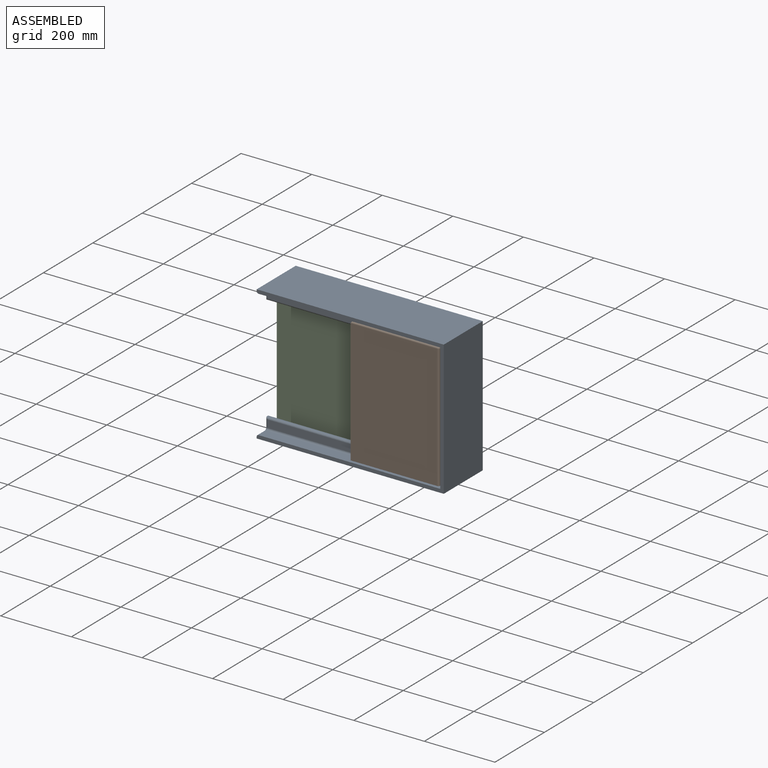
[diagram: assembled view]
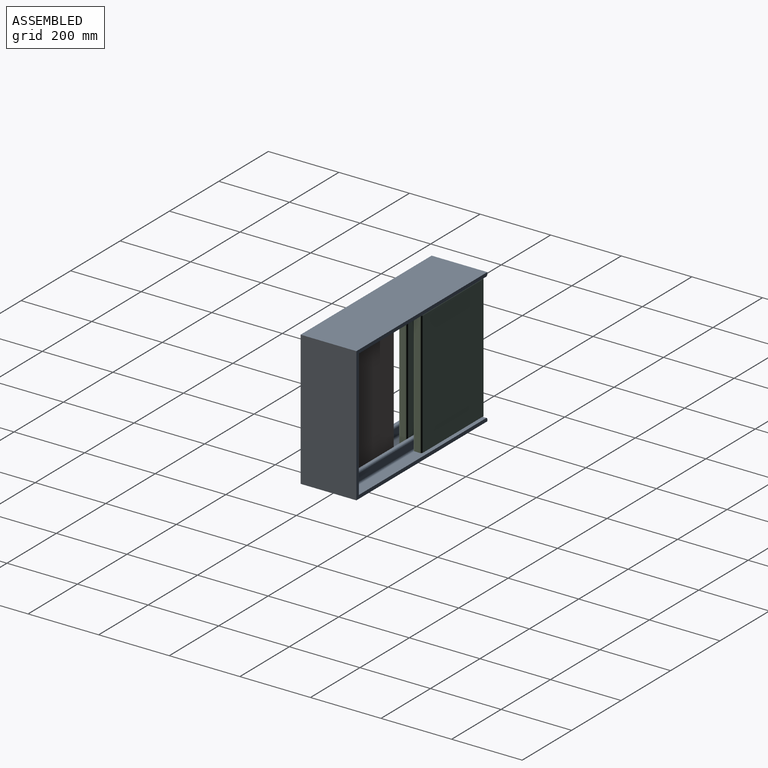
[diagram: assembled view, second angle]
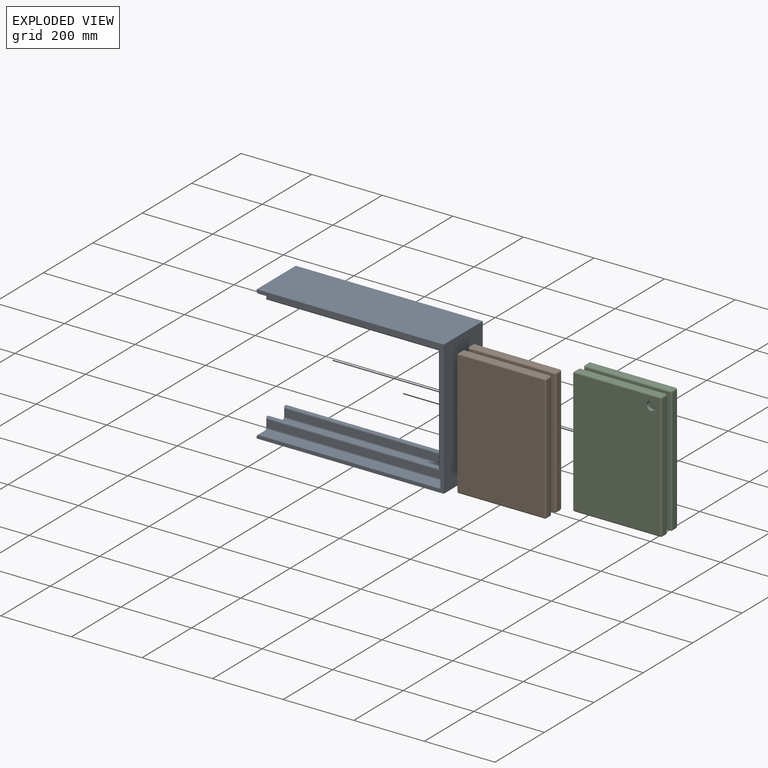
[diagram: exploded view]
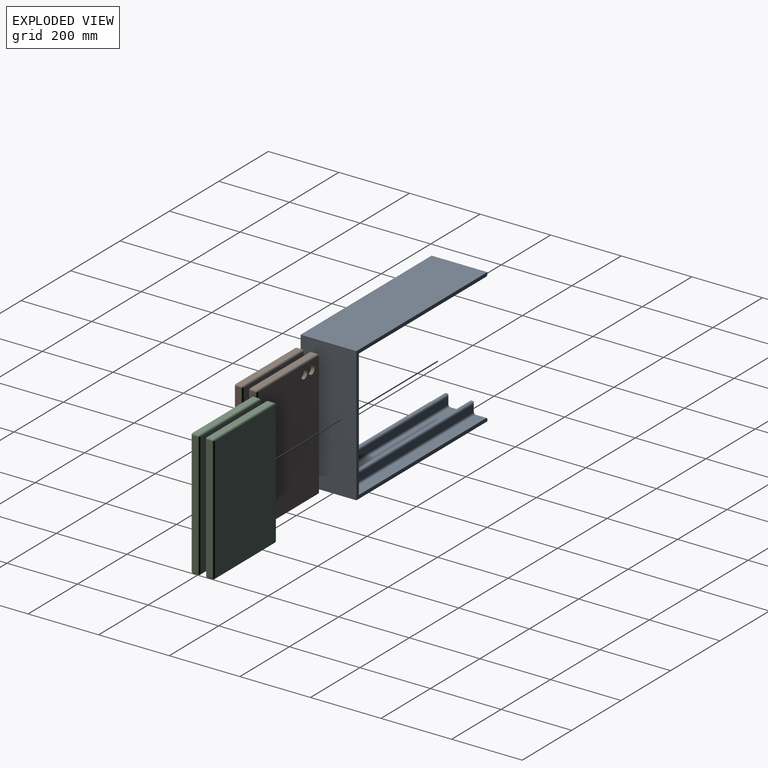
[diagram: exploded view, second angle]
ASSEMBLY  parts=3 mates=2
PART A: 72 faces, bbox 530x158x382 mm
  f0: plane 158x41mm, normal (-1,0,0), area 1163.8mm2, adj f3,f5,f7,f19,f21,f34,f36,f37
  f1: plane 158x41mm, normal (-1,0,0), area 1163.8mm2, adj f16,f19,f20,f21,f24,f26,f27,f29
  f2: plane 515x48mm, normal (0,0,-1), area 24720mm2, adj f13,f65,f68,f71
  f3: plane 489x4mm, normal (0,0,-1), area 1956mm2, adj f0,f12,f45,f63
  f4: plane 515x31mm, normal (0,0,-1), area 15965mm2, adj f11,f19,f46,f49
  f5: plane 530x158mm, normal (0,0,1), area 83740mm2, adj f0,f10,f19,f21
  f6: plane 515x31mm, normal (0,0,-1), area 15965mm2, adj f9,f21,f35,f37
  f7: plane 489x4mm, normal (0,0,-1), area 1956mm2, adj f0,f8,f32,f62
  f8: plane 300x4mm, normal (-1,0,0), area 1200mm2, adj f7,f24,f30,f58
  f9: plane 362x31mm, normal (-1,0,0), area 11222mm2, adj f6,f21,f22,f33
  f10: plane 382x158mm, normal (1,0,0), area 60356mm2, adj f5,f19,f20,f21
  f11: plane 362x31mm, normal (-1,0,0), area 11222mm2, adj f4,f18,f19,f44
  f12: plane 300x4mm, normal (-1,0,0), area 1200mm2, adj f3,f16,f43,f59
  f13: plane 362x48mm, normal (-1,0,0), area 17376mm2, adj f2,f14,f61,f64
  f14: plane 515x48mm, normal (0,0,1), area 24720mm2, adj f13,f52,f57,f60
  f15: plane 510x352mm, normal (0,1,0), area 27930mm2, adj f51,f55,f59,f60,f63,f64,f67,f68
  f16: plane 489x4mm, normal (0,0,1), area 1956mm2, adj f1,f12,f41,f55
  f17: plane 510x352mm, normal (0,-1,0), area 27930mm2, adj f39,f41,f42,f43,f44,f45,f46,f47
  f18: plane 515x31mm, normal (0,0,1), area 15965mm2, adj f11,f19,f38,f42
  f19: plane 530x382mm, normal (0,-1,0), area 14209.3mm2, adj f0,f1,f4,f5,f10,f11,f18,f20
  f20: plane 530x158mm, normal (0,0,-1), area 83740mm2, adj f1,f10,f19,f21
  f21: plane 530x382mm, normal (0,1,0), area 14209.3mm2, adj f0,f1,f5,f6,f9,f10,f20,f22
  f22: plane 515x31mm, normal (0,0,1), area 15965mm2, adj f9,f21,f27,f31
  f23: plane 510x352mm, normal (0,1,0), area 27930mm2, adj f26,f28,f30,f31,f32,f33,f34,f35
  f24: plane 489x4mm, normal (0,0,1), area 1956mm2, adj f1,f8,f28,f54
  f25: plane 510x352mm, normal (0,-1,0), area 27930mm2, adj f50,f54,f57,f58,f61,f62,f65,f66
  f26: cylinder r=5mm len=26mm, axis (0,0,-1), area 189.9mm2, adj f1,f23,f28,f29
  f27: cylinder r=5mm len=31mm, axis (0,1,0), area 243.5mm2, adj f1,f21,f22,f29
  f28: cylinder r=5mm len=494mm, axis (1,0,0), area 3840.6mm2, adj f23,f24,f26,f30
  f29: torus R=10mm, axis (1,0,0), area 84.1mm2, adj f1,f26,f27,f31
  f30: cylinder r=5mm len=310mm, axis (0,0,1), area 2384.7mm2, adj f8,f23,f28,f32
  f31: cylinder r=5mm len=515mm, axis (-1,0,0), area 4030.5mm2, adj f22,f23,f29,f33
  f32: cylinder r=5mm len=494mm, axis (-1,0,0), area 3840.6mm2, adj f7,f23,f30,f34
  f33: cylinder r=5mm len=362mm, axis (0,0,-1), area 2814.6mm2, adj f9,f23,f31,f35
  f34: cylinder r=5mm len=26mm, axis (0,0,-1), area 189.9mm2, adj f0,f23,f32,f36
  f35: cylinder r=5mm len=515mm, axis (1,0,0), area 4030.5mm2, adj f6,f23,f33,f36
  f36: torus R=10mm, axis (-1,0,0), area 84.1mm2, adj f0,f34,f35,f37
  f37: cylinder r=5mm len=31mm, axis (0,-1,0), area 243.5mm2, adj f0,f6,f21,f36
  f38: cylinder r=5mm len=31mm, axis (0,1,0), area 243.5mm2, adj f1,f18,f19,f40
  f39: cylinder r=5mm len=26mm, axis (0,0,1), area 189.9mm2, adj f1,f17,f40,f41
  f40: torus R=10mm, axis (1,0,0), area 84.1mm2, adj f1,f38,f39,f42
  f41: cylinder r=5mm len=494mm, axis (1,0,0), area 3840.6mm2, adj f16,f17,f39,f43
  f42: cylinder r=5mm len=515mm, axis (-1,0,0), area 4030.5mm2, adj f17,f18,f40,f44
  f43: cylinder r=5mm len=310mm, axis (0,0,1), area 2384.7mm2, adj f12,f17,f41,f45
  f44: cylinder r=5mm len=362mm, axis (0,0,-1), area 2814.6mm2, adj f11,f17,f42,f46
  f45: cylinder r=5mm len=494mm, axis (-1,0,0), area 3840.6mm2, adj f3,f17,f43,f47
  f46: cylinder r=5mm len=515mm, axis (1,0,0), area 4030.5mm2, adj f4,f17,f44,f48
  f47: cylinder r=5mm len=26mm, axis (0,0,1), area 189.9mm2, adj f0,f17,f45,f48
  f48: torus R=10mm, axis (-1,0,0), area 84.1mm2, adj f0,f46,f47,f49
  f49: cylinder r=5mm len=31mm, axis (0,-1,0), area 243.5mm2, adj f0,f4,f19,f48
  f50: cylinder r=5mm len=26mm, axis (0,0,1), area 189.9mm2, adj f1,f25,f53,f54
  f51: cylinder r=5mm len=26mm, axis (0,0,-1), area 189.9mm2, adj f1,f15,f55,f56
  f52: cylinder r=5mm len=48mm, axis (0,1,0), area 377mm2, adj f1,f14,f53,f56
  f53: torus R=10mm, axis (1,0,0), area 84.1mm2, adj f1,f50,f52,f57
  f54: cylinder r=5mm len=494mm, axis (1,0,0), area 3840.6mm2, adj f24,f25,f50,f58
  f55: cylinder r=5mm len=494mm, axis (1,0,0), area 3840.6mm2, adj f15,f16,f51,f59
  f56: torus R=10mm, axis (1,0,0), area 84.1mm2, adj f1,f51,f52,f60
  f57: cylinder r=5mm len=515mm, axis (-1,0,0), area 4030.5mm2, adj f14,f25,f53,f61
  f58: cylinder r=5mm len=310mm, axis (0,0,1), area 2384.7mm2, adj f8,f25,f54,f62
  f59: cylinder r=5mm len=310mm, axis (0,0,1), area 2384.7mm2, adj f12,f15,f55,f63
  f60: cylinder r=5mm len=515mm, axis (-1,0,0), area 4030.5mm2, adj f14,f15,f56,f64
  f61: cylinder r=5mm len=362mm, axis (0,0,-1), area 2814.6mm2, adj f13,f25,f57,f65
  f62: cylinder r=5mm len=494mm, axis (-1,0,0), area 3840.6mm2, adj f7,f25,f58,f66
  f63: cylinder r=5mm len=494mm, axis (-1,0,0), area 3840.6mm2, adj f3,f15,f59,f67
  f64: cylinder r=5mm len=362mm, axis (0,0,-1), area 2814.6mm2, adj f13,f15,f60,f68
  f65: cylinder r=5mm len=515mm, axis (1,0,0), area 4030.5mm2, adj f2,f25,f61,f69
  f66: cylinder r=5mm len=26mm, axis (0,0,1), area 189.9mm2, adj f0,f25,f62,f69
  f67: cylinder r=5mm len=26mm, axis (0,0,-1), area 189.9mm2, adj f0,f15,f63,f70
  f68: cylinder r=5mm len=515mm, axis (1,0,0), area 4030.5mm2, adj f2,f15,f64,f70
  f69: torus R=10mm, axis (-1,0,0), area 84.1mm2, adj f0,f65,f66,f71
  f70: torus R=10mm, axis (-1,0,0), area 84.1mm2, adj f0,f67,f68,f71
  f71: cylinder r=5mm len=48mm, axis (0,-1,0), area 377mm2, adj f0,f2,f69,f70
PART B: 72 faces, bbox 250x66x360 mm
  f0: plane 350x15mm, normal (1,0,0), area 5250mm2, adj f18,f20,f21,f22
  f1: plane 350x66mm, normal (-1,0,0), area 21625.8mm2, adj f6,f11,f31,f34,f45,f46,f47,f48
  f2: plane 350x15mm, normal (1,0,0), area 5250mm2, adj f28,f29,f36,f37
  f3: plane 210x6mm, normal (0,0,-1), area 1260mm2, adj f58,f59,f67,f68
  f4: plane 350x240mm, normal (0,-1,0), area 15842.9mm2, adj f21,f32,f33,f46,f47,f56,f57,f58
  f5: plane 240x15mm, normal (0,0,-1), area 3600mm2, adj f22,f27,f33,f34
  f6: plane 350x245mm, normal (0,1,0), area 84768.3mm2, adj f1,f13,f15,f18,f24,f27
  f7: plane 240x15mm, normal (0,0,1), area 3600mm2, adj f20,f24,f31,f32
  f8: plane 210x6mm, normal (0,0,1), area 1260mm2, adj f55,f56,f65,f66
  f9: plane 350x240mm, normal (0,1,0), area 15842.9mm2, adj f37,f44,f49,f54,f60,f65,f68,f69
  f10: plane 240x15mm, normal (0,0,1), area 3600mm2, adj f29,f39,f44,f45
  f11: plane 350x245mm, normal (0,-1,0), area 85750mm2, adj f1,f28,f39,f42
  f12: plane 240x15mm, normal (0,0,-1), area 3600mm2, adj f36,f42,f48,f49
  f13: cylinder r=12.5mm len=25mm, axis (0,1,0), area 785.4mm2, adj f6,f14
  f14: plane 25x25mm, normal (0,1,0), area 490.9mm2, adj f13
  f15: cylinder r=12.5mm len=25mm, axis (0,1,0), area 785.4mm2, adj f6,f16
  f16: plane 25x25mm, normal (0,1,0), area 490.9mm2, adj f15
  f17: plane 290x6mm, normal (1,0,0), area 1740mm2, adj f57,f66,f67,f71
  f18: cylinder r=5mm len=350mm, axis (0,0,1), area 2748.9mm2, adj f0,f6,f19,f23
  f19: sphere r=5mm, area 39.3mm2, adj f18,f20,f24
  f20: cylinder r=5mm len=15mm, axis (0,-1,0), area 117.8mm2, adj f0,f7,f19,f25
  f21: cylinder r=5mm len=350mm, axis (0,0,-1), area 2748.9mm2, adj f0,f4,f25,f26
  f22: cylinder r=5mm len=15mm, axis (0,1,0), area 117.8mm2, adj f0,f5,f23,f26
  f23: sphere r=5mm, area 39.3mm2, adj f18,f22,f27
  f24: cylinder r=5mm len=245mm, axis (1,0,0), area 1910mm2, adj f6,f7,f19,f31
  f25: sphere r=5mm, area 39.3mm2, adj f20,f21,f32
  f26: sphere r=5mm, area 39.3mm2, adj f21,f22,f33
  f27: cylinder r=5mm len=245mm, axis (1,0,0), area 1910mm2, adj f5,f6,f23,f34
  f28: cylinder r=5mm len=350mm, axis (0,0,-1), area 2748.9mm2, adj f2,f11,f30,f35
  f29: cylinder r=5mm len=15mm, axis (0,-1,0), area 117.8mm2, adj f2,f10,f30,f38
  f30: sphere r=5mm, area 39.3mm2, adj f28,f29,f39
  f31: cylinder r=5mm len=20mm, axis (0,1,0), area 142.8mm2, adj f1,f7,f24,f40
  f32: cylinder r=5mm len=240mm, axis (1,0,0), area 1885mm2, adj f4,f7,f25,f40
  f33: cylinder r=5mm len=240mm, axis (1,0,0), area 1885mm2, adj f4,f5,f26,f41
  f34: cylinder r=5mm len=20mm, axis (0,-1,0), area 142.8mm2, adj f1,f5,f27,f41
  f35: sphere r=5mm, area 39.3mm2, adj f28,f36,f42
  f36: cylinder r=5mm len=15mm, axis (0,1,0), area 117.8mm2, adj f2,f12,f35,f43
  f37: cylinder r=5mm len=350mm, axis (0,0,1), area 2748.9mm2, adj f2,f9,f38,f43
  f38: sphere r=5mm, area 39.3mm2, adj f29,f37,f44
  f39: cylinder r=5mm len=245mm, axis (1,0,0), area 1910mm2, adj f10,f11,f30,f45
  f40: sphere r=5mm, area 39.3mm2, adj f31,f32,f46
  f41: sphere r=5mm, area 39.3mm2, adj f33,f34,f47
  f42: cylinder r=5mm len=245mm, axis (1,0,0), area 1910mm2, adj f11,f12,f35,f48
  f43: sphere r=5mm, area 39.3mm2, adj f36,f37,f49
  f44: cylinder r=5mm len=240mm, axis (1,0,0), area 1885mm2, adj f9,f10,f38,f50
  f45: cylinder r=5mm len=20mm, axis (0,1,0), area 142.8mm2, adj f1,f10,f39,f50
  f46: cylinder r=5mm len=20mm, axis (0,0,1), area 157.1mm2, adj f1,f4,f40,f51
  f47: cylinder r=5mm len=20mm, axis (0,0,1), area 157.1mm2, adj f1,f4,f41,f52
  f48: cylinder r=5mm len=20mm, axis (0,-1,0), area 142.8mm2, adj f1,f12,f42,f53
  f49: cylinder r=5mm len=240mm, axis (1,0,0), area 1885mm2, adj f9,f12,f43,f53
  f50: sphere r=5mm, area 39.3mm2, adj f44,f45,f54
  f51: torus R=10mm, axis (1,0,0), area 84.1mm2, adj f1,f46,f55,f56
  f52: torus R=10mm, axis (1,0,0), area 84.1mm2, adj f1,f47,f58,f59
  f53: sphere r=5mm, area 39.3mm2, adj f48,f49,f60
  f54: cylinder r=5mm len=20mm, axis (0,0,-1), area 157.1mm2, adj f1,f9,f50,f61
  f55: cylinder r=5mm len=6mm, axis (0,1,0), area 47.1mm2, adj f1,f8,f51,f61
  f56: cylinder r=5mm len=210mm, axis (-1,0,0), area 1649.3mm2, adj f4,f8,f51,f62
  f57: cylinder r=5mm len=290mm, axis (0,0,1), area 2277.7mm2, adj f4,f17,f62,f63
  f58: cylinder r=5mm len=210mm, axis (-1,0,0), area 1649.3mm2, adj f3,f4,f52,f63
  f59: cylinder r=5mm len=6mm, axis (0,-1,0), area 47.1mm2, adj f1,f3,f52,f64
  f60: cylinder r=5mm len=20mm, axis (0,0,-1), area 157.1mm2, adj f1,f9,f53,f64
  f61: torus R=10mm, axis (1,0,0), area 84.1mm2, adj f1,f54,f55,f65
  f62: torus R=10mm, axis (0,-1,0), area 84.1mm2, adj f4,f56,f57,f66
  f63: torus R=10mm, axis (0,-1,0), area 84.1mm2, adj f4,f57,f58,f67
  f64: torus R=10mm, axis (1,0,0), area 84.1mm2, adj f1,f59,f60,f68
  f65: cylinder r=5mm len=210mm, axis (-1,0,0), area 1649.3mm2, adj f8,f9,f61,f69
  f66: cylinder r=5mm len=6mm, axis (0,-1,0), area 47.1mm2, adj f8,f17,f62,f69
  f67: cylinder r=5mm len=6mm, axis (0,1,0), area 47.1mm2, adj f3,f17,f63,f70
  f68: cylinder r=5mm len=210mm, axis (-1,0,0), area 1649.3mm2, adj f3,f9,f64,f70
  f69: torus R=10mm, axis (0,1,0), area 84.1mm2, adj f9,f65,f66,f71
  f70: torus R=10mm, axis (0,1,0), area 84.1mm2, adj f9,f67,f68,f71
  f71: cylinder r=5mm len=290mm, axis (0,0,1), area 2277.7mm2, adj f9,f17,f69,f70
PART C: 70 faces, bbox 250x66x360 mm
  f0: plane 350x15mm, normal (1,0,0), area 5250mm2, adj f16,f18,f19,f20
  f1: plane 350x66mm, normal (-1,0,0), area 21625.8mm2, adj f6,f11,f29,f32,f43,f44,f45,f46
  f2: plane 350x15mm, normal (1,0,0), area 5250mm2, adj f26,f27,f34,f35
  f3: plane 210x6mm, normal (0,0,-1), area 1260mm2, adj f56,f57,f65,f66
  f4: plane 350x240mm, normal (0,-1,0), area 15842.9mm2, adj f19,f30,f31,f44,f45,f54,f55,f56
  f5: plane 240x15mm, normal (0,0,-1), area 3600mm2, adj f20,f25,f31,f32
  f6: plane 350x245mm, normal (0,1,0), area 85750mm2, adj f1,f16,f22,f25
  f7: plane 240x15mm, normal (0,0,1), area 3600mm2, adj f18,f22,f29,f30
  f8: plane 210x6mm, normal (0,0,1), area 1260mm2, adj f53,f54,f63,f64
  f9: plane 350x240mm, normal (0,1,0), area 15842.9mm2, adj f35,f42,f47,f52,f58,f63,f66,f67
  f10: plane 240x15mm, normal (0,0,1), area 3600mm2, adj f27,f37,f42,f43
  f11: plane 350x245mm, normal (0,-1,0), area 85259.1mm2, adj f1,f13,f26,f37,f40
  f12: plane 240x15mm, normal (0,0,-1), area 3600mm2, adj f34,f40,f46,f47
  f13: cylinder r=12.5mm len=25mm, axis (0,-1,0), area 785.4mm2, adj f11,f14
  f14: plane 25x25mm, normal (0,-1,0), area 490.9mm2, adj f13
  f15: plane 290x6mm, normal (1,0,0), area 1740mm2, adj f55,f64,f65,f69
  f16: cylinder r=5mm len=350mm, axis (0,0,1), area 2748.9mm2, adj f0,f6,f17,f21
  f17: sphere r=5mm, area 39.3mm2, adj f16,f18,f22
  f18: cylinder r=5mm len=15mm, axis (0,-1,0), area 117.8mm2, adj f0,f7,f17,f23
  f19: cylinder r=5mm len=350mm, axis (0,0,-1), area 2748.9mm2, adj f0,f4,f23,f24
  f20: cylinder r=5mm len=15mm, axis (0,1,0), area 117.8mm2, adj f0,f5,f21,f24
  f21: sphere r=5mm, area 39.3mm2, adj f16,f20,f25
  f22: cylinder r=5mm len=245mm, axis (1,0,0), area 1910mm2, adj f6,f7,f17,f29
  f23: sphere r=5mm, area 39.3mm2, adj f18,f19,f30
  f24: sphere r=5mm, area 39.3mm2, adj f19,f20,f31
  f25: cylinder r=5mm len=245mm, axis (1,0,0), area 1910mm2, adj f5,f6,f21,f32
  f26: cylinder r=5mm len=350mm, axis (0,0,-1), area 2748.9mm2, adj f2,f11,f28,f33
  f27: cylinder r=5mm len=15mm, axis (0,-1,0), area 117.8mm2, adj f2,f10,f28,f36
  f28: sphere r=5mm, area 39.3mm2, adj f26,f27,f37
  f29: cylinder r=5mm len=20mm, axis (0,1,0), area 142.8mm2, adj f1,f7,f22,f38
  f30: cylinder r=5mm len=240mm, axis (1,0,0), area 1885mm2, adj f4,f7,f23,f38
  f31: cylinder r=5mm len=240mm, axis (1,0,0), area 1885mm2, adj f4,f5,f24,f39
  f32: cylinder r=5mm len=20mm, axis (0,-1,0), area 142.8mm2, adj f1,f5,f25,f39
  f33: sphere r=5mm, area 39.3mm2, adj f26,f34,f40
  f34: cylinder r=5mm len=15mm, axis (0,1,0), area 117.8mm2, adj f2,f12,f33,f41
  f35: cylinder r=5mm len=350mm, axis (0,0,1), area 2748.9mm2, adj f2,f9,f36,f41
  f36: sphere r=5mm, area 39.3mm2, adj f27,f35,f42
  f37: cylinder r=5mm len=245mm, axis (1,0,0), area 1910mm2, adj f10,f11,f28,f43
  f38: sphere r=5mm, area 39.3mm2, adj f29,f30,f44
  f39: sphere r=5mm, area 39.3mm2, adj f31,f32,f45
  f40: cylinder r=5mm len=245mm, axis (1,0,0), area 1910mm2, adj f11,f12,f33,f46
  f41: sphere r=5mm, area 39.3mm2, adj f34,f35,f47
  f42: cylinder r=5mm len=240mm, axis (1,0,0), area 1885mm2, adj f9,f10,f36,f48
  f43: cylinder r=5mm len=20mm, axis (0,1,0), area 142.8mm2, adj f1,f10,f37,f48
  f44: cylinder r=5mm len=20mm, axis (0,0,1), area 157.1mm2, adj f1,f4,f38,f49
  f45: cylinder r=5mm len=20mm, axis (0,0,1), area 157.1mm2, adj f1,f4,f39,f50
  f46: cylinder r=5mm len=20mm, axis (0,-1,0), area 142.8mm2, adj f1,f12,f40,f51
  f47: cylinder r=5mm len=240mm, axis (1,0,0), area 1885mm2, adj f9,f12,f41,f51
  f48: sphere r=5mm, area 39.3mm2, adj f42,f43,f52
  f49: torus R=10mm, axis (1,0,0), area 84.1mm2, adj f1,f44,f53,f54
  f50: torus R=10mm, axis (1,0,0), area 84.1mm2, adj f1,f45,f56,f57
  f51: sphere r=5mm, area 39.3mm2, adj f46,f47,f58
  f52: cylinder r=5mm len=20mm, axis (0,0,-1), area 157.1mm2, adj f1,f9,f48,f59
  f53: cylinder r=5mm len=6mm, axis (0,1,0), area 47.1mm2, adj f1,f8,f49,f59
  f54: cylinder r=5mm len=210mm, axis (-1,0,0), area 1649.3mm2, adj f4,f8,f49,f60
  f55: cylinder r=5mm len=290mm, axis (0,0,1), area 2277.7mm2, adj f4,f15,f60,f61
  f56: cylinder r=5mm len=210mm, axis (-1,0,0), area 1649.3mm2, adj f3,f4,f50,f61
  f57: cylinder r=5mm len=6mm, axis (0,-1,0), area 47.1mm2, adj f1,f3,f50,f62
  f58: cylinder r=5mm len=20mm, axis (0,0,-1), area 157.1mm2, adj f1,f9,f51,f62
  f59: torus R=10mm, axis (1,0,0), area 84.1mm2, adj f1,f52,f53,f63
  f60: torus R=10mm, axis (0,-1,0), area 84.1mm2, adj f4,f54,f55,f64
  f61: torus R=10mm, axis (0,-1,0), area 84.1mm2, adj f4,f55,f56,f65
  f62: torus R=10mm, axis (1,0,0), area 84.1mm2, adj f1,f57,f58,f66
  f63: cylinder r=5mm len=210mm, axis (-1,0,0), area 1649.3mm2, adj f8,f9,f59,f67
  f64: cylinder r=5mm len=6mm, axis (0,-1,0), area 47.1mm2, adj f8,f15,f60,f67
  f65: cylinder r=5mm len=6mm, axis (0,1,0), area 47.1mm2, adj f3,f15,f61,f68
  f66: cylinder r=5mm len=210mm, axis (-1,0,0), area 1649.3mm2, adj f3,f9,f62,f68
  f67: torus R=10mm, axis (0,1,0), area 84.1mm2, adj f9,f63,f64,f69
  f68: torus R=10mm, axis (0,1,0), area 84.1mm2, adj f9,f65,f66,f69
  f69: cylinder r=5mm len=290mm, axis (0,0,1), area 2277.7mm2, adj f9,f15,f67,f68
PLACE A at identity fixed
PLACE B t=(0,-37,176)mm
PLACE C t=(-260,35,176)mm
MATE slider B.f51 <-> A.f0  axis (-1,0,0) through (0,-34,331)mm
MATE slider C.f49 <-> A.f0  axis (-1,0,0) through (-260,38,331)mm
